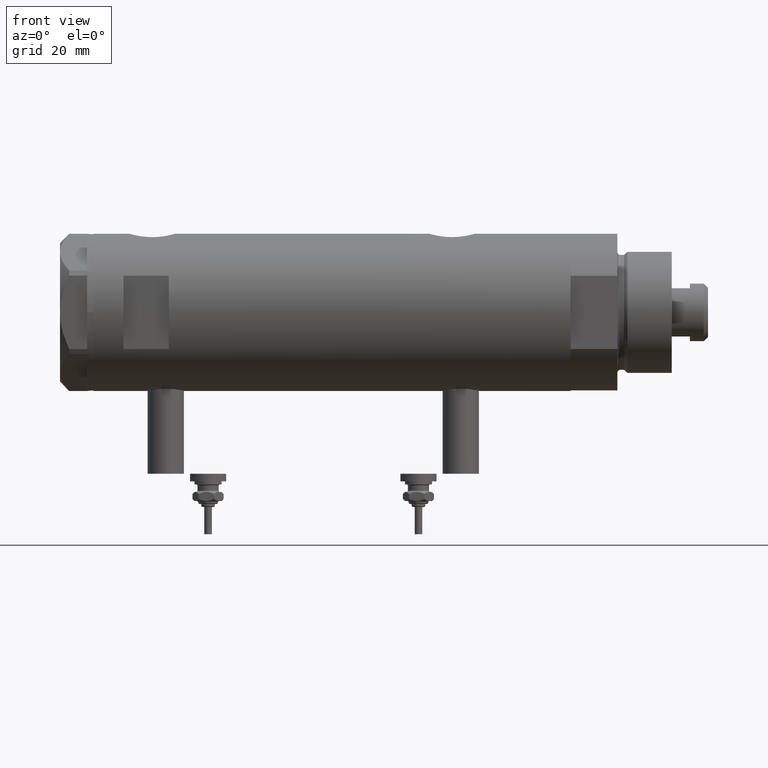
[diagram: clean part render]
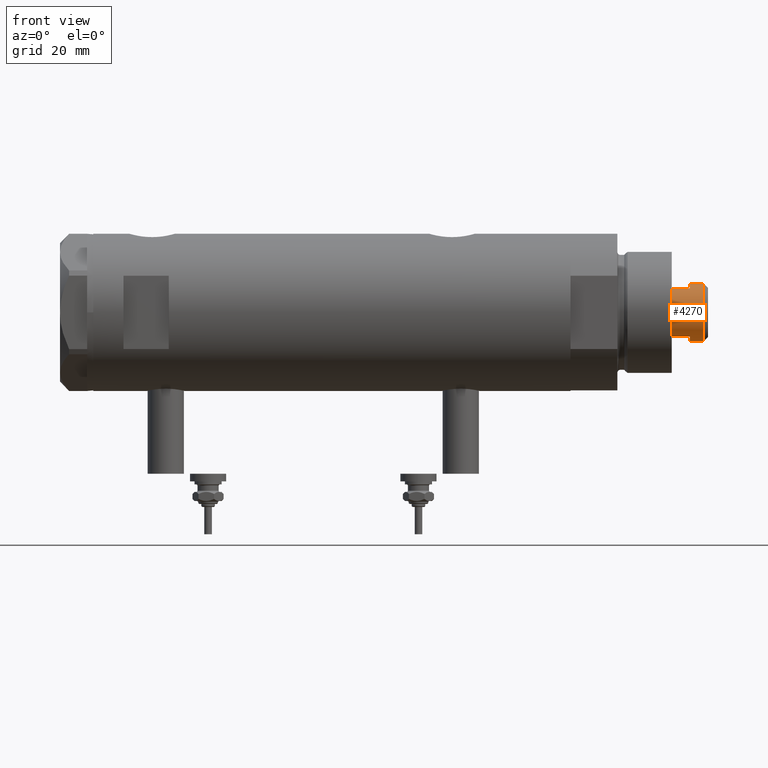
[diagram: same view with one face highlighted and labeled with its STEP entity id]
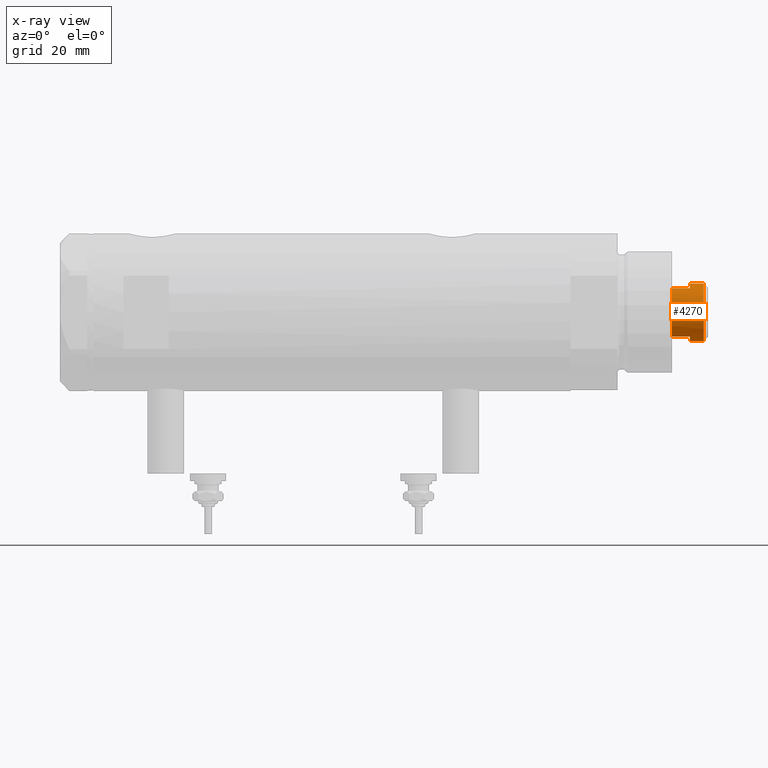
[diagram: x-ray of the same camera — body ghosted, the highlighted face saturated]
A machine part, front view. The second image highlights one B-rep face of the part: STEP entity #4270.
The next image is the same camera in x-ray: the body ghosted, the highlighted face saturated — about 0% of this face is hidden behind the body in this view.
In plain terms, the highlighted cylindrical surface (edge-blend (fillet) strip) has radius 9.5 mm, axis along (-1, -0, 0).
Its self-contained STEP definition (entity closure, byte-faithful):
#50 = VERTEX_POINT ( 'NONE', #1858 ) ;
#76 = LINE ( 'NONE', #3048, #831 ) ;
#295 = LINE ( 'NONE', #2262, #1041 ) ;
#299 = ORIENTED_EDGE ( 'NONE', *, *, #5467, .T. ) ;
#468 = DIRECTION ( 'NONE',  ( 1.000000000000000000, 0.000000000000000000, 0.000000000000000000 ) ) ;
#528 = VERTEX_POINT ( 'NONE', #3772 ) ;
#594 = CARTESIAN_POINT ( 'NONE',  ( -9.500000000000000000, 0.000000000000000000, 173.6000000000000227 ) ) ;
#672 = CARTESIAN_POINT ( 'NONE',  ( 0.000000000000000000, 0.000000000000000000, 167.6000000000000227 ) ) ;
#731 = ORIENTED_EDGE ( 'NONE', *, *, #3219, .T. ) ;
#732 = AXIS2_PLACEMENT_3D ( 'NONE', #5243, #2244, #468 ) ;
#831 = VECTOR ( 'NONE', #2576, 1000.000000000000000 ) ;
#1041 = VECTOR ( 'NONE', #2231, 1000.000000000000000 ) ;
#1214 = ORIENTED_EDGE ( 'NONE', *, *, #3138, .F. ) ;
#1364 = EDGE_CURVE ( 'NONE', #528, #2249, #5542, .T. ) ;
#1522 = DIRECTION ( 'NONE',  ( -0.000000000000000000, -0.000000000000000000, -1.000000000000000000 ) ) ;
#1676 = AXIS2_PLACEMENT_3D ( 'NONE', #4566, #3147, #4645 ) ;
#1737 = EDGE_LOOP ( 'NONE', ( #5274, #299, #4109, #1937, #3278, #731, #1214, #5480 ) ) ;
#1827 = EDGE_CURVE ( 'NONE', #50, #5863, #76, .T. ) ;
#1828 = DIRECTION ( 'NONE',  ( 0.000000000000000000, 0.000000000000000000, -1.000000000000000000 ) ) ;
#1858 = CARTESIAN_POINT ( 'NONE',  ( -9.500000000000001776, 0.000000000000000000, 178.2000000000000171 ) ) ;
#1889 = CIRCLE ( 'NONE', #2877, 9.500000000000001776 ) ;
#1937 = ORIENTED_EDGE ( 'NONE', *, *, #4765, .T. ) ;
#1977 = DIRECTION ( 'NONE',  ( -0.000000000000000000, -0.000000000000000000, -1.000000000000000000 ) ) ;
#2025 = FACE_OUTER_BOUND ( 'NONE', #1737, .T. ) ;
#2036 = CARTESIAN_POINT ( 'NONE',  ( 7.982950582334832568, -5.149999999999997691, 173.6000000000000227 ) ) ;
#2161 = CARTESIAN_POINT ( 'NONE',  ( -7.982950582334825462, -5.150000000000003020, 173.6000000000000227 ) ) ;
#2231 = DIRECTION ( 'NONE',  ( -0.000000000000000000, -0.000000000000000000, -1.000000000000000000 ) ) ;
#2244 = DIRECTION ( 'NONE',  ( 0.000000000000000000, 0.000000000000000000, 1.000000000000000000 ) ) ;
#2249 = VERTEX_POINT ( 'NONE', #4541 ) ;
#2262 = CARTESIAN_POINT ( 'NONE',  ( -7.982950582334829015, -5.150000000000001243, 173.6000000000000227 ) ) ;
#2442 = CARTESIAN_POINT ( 'NONE',  ( 0.000000000000000000, 0.000000000000000000, 178.2000000000000171 ) ) ;
#2482 = LINE ( 'NONE', #4401, #4918 ) ;
#2547 = CARTESIAN_POINT ( 'NONE',  ( 7.982950582334834344, -5.150000000000034994, 167.6000000000000227 ) ) ;
#2576 = DIRECTION ( 'NONE',  ( -0.000000000000000000, -0.000000000000000000, -1.000000000000000000 ) ) ;
#2578 = VERTEX_POINT ( 'NONE', #2547 ) ;
#2626 = DIRECTION ( 'NONE',  ( 1.000000000000000000, 0.000000000000000000, 0.000000000000000000 ) ) ;
#2716 = VERTEX_POINT ( 'NONE', #2161 ) ;
#2857 = CARTESIAN_POINT ( 'NONE',  ( -7.982950582334825462, -5.150000000000042988, 167.6000000000000227 ) ) ;
#2877 = AXIS2_PLACEMENT_3D ( 'NONE', #672, #6084, #2626 ) ;
#2975 = AXIS2_PLACEMENT_3D ( 'NONE', #4419, #1522, #3055 ) ;
#3048 = CARTESIAN_POINT ( 'NONE',  ( -9.500000000000001776, 0.000000000000000000, 173.6000000000000227 ) ) ;
#3055 = DIRECTION ( 'NONE',  ( -1.000000000000000000, 0.000000000000000000, 0.000000000000000000 ) ) ;
#3091 = CIRCLE ( 'NONE', #4404, 9.500000000000001776 ) ;
#3110 = DIRECTION ( 'NONE',  ( -0.000000000000000000, -0.000000000000000000, -1.000000000000000000 ) ) ;
#3138 = EDGE_CURVE ( 'NONE', #3148, #2578, #2482, .T. ) ;
#3147 = DIRECTION ( 'NONE',  ( 0.000000000000000000, 0.000000000000000000, 1.000000000000000000 ) ) ;
#3148 = VERTEX_POINT ( 'NONE', #2036 ) ;
#3219 = EDGE_CURVE ( 'NONE', #4515, #2578, #1889, .T. ) ;
#3278 = ORIENTED_EDGE ( 'NONE', *, *, #3899, .T. ) ;
#3490 = CIRCLE ( 'NONE', #732, 9.500000000000000000 ) ;
#3621 = CARTESIAN_POINT ( 'NONE',  ( 9.500000000000001776, 1.163414459189985682E-15, 173.6000000000000227 ) ) ;
#3743 = DIRECTION ( 'NONE',  ( 1.000000000000000000, 0.000000000000000000, 0.000000000000000000 ) ) ;
#3772 = CARTESIAN_POINT ( 'NONE',  ( 9.500000000000001776, 1.163414459189985682E-15, 178.2000000000000171 ) ) ;
#3899 = EDGE_CURVE ( 'NONE', #2716, #4515, #295, .T. ) ;
#4109 = ORIENTED_EDGE ( 'NONE', *, *, #1827, .T. ) ;
#4270 = ADVANCED_FACE ( 'NONE', ( #2025 ), #5882, .T. ) ;
#4324 = EDGE_CURVE ( 'NONE', #3148, #2249, #6149, .T. ) ;
#4401 = CARTESIAN_POINT ( 'NONE',  ( 7.982950582334832568, -5.149999999999997691, 173.6000000000000227 ) ) ;
#4404 = AXIS2_PLACEMENT_3D ( 'NONE', #2442, #1828, #3743 ) ;
#4419 = CARTESIAN_POINT ( 'NONE',  ( 0.000000000000000000, 0.000000000000000000, 173.6000000000000227 ) ) ;
#4479 = VECTOR ( 'NONE', #3110, 1000.000000000000000 ) ;
#4515 = VERTEX_POINT ( 'NONE', #2857 ) ;
#4541 = CARTESIAN_POINT ( 'NONE',  ( 9.500000000000000000, 1.163414459189985485E-15, 173.6000000000000227 ) ) ;
#4566 = CARTESIAN_POINT ( 'NONE',  ( 0.000000000000000000, 0.000000000000000000, 173.6000000000000227 ) ) ;
#4645 = DIRECTION ( 'NONE',  ( 1.000000000000000000, 0.000000000000000000, 0.000000000000000000 ) ) ;
#4765 = EDGE_CURVE ( 'NONE', #5863, #2716, #3490, .T. ) ;
#4918 = VECTOR ( 'NONE', #1977, 1000.000000000000000 ) ;
#5243 = CARTESIAN_POINT ( 'NONE',  ( 0.000000000000000000, 0.000000000000000000, 173.6000000000000227 ) ) ;
#5274 = ORIENTED_EDGE ( 'NONE', *, *, #1364, .F. ) ;
#5467 = EDGE_CURVE ( 'NONE', #528, #50, #3091, .T. ) ;
#5480 = ORIENTED_EDGE ( 'NONE', *, *, #4324, .T. ) ;
#5542 = LINE ( 'NONE', #3621, #4479 ) ;
#5863 = VERTEX_POINT ( 'NONE', #594 ) ;
#5882 = CYLINDRICAL_SURFACE ( 'NONE', #2975, 9.500000000000001776 ) ;
#6084 = DIRECTION ( 'NONE',  ( 0.000000000000000000, 0.000000000000000000, 1.000000000000000000 ) ) ;
#6149 = CIRCLE ( 'NONE', #1676, 9.500000000000000000 ) ;